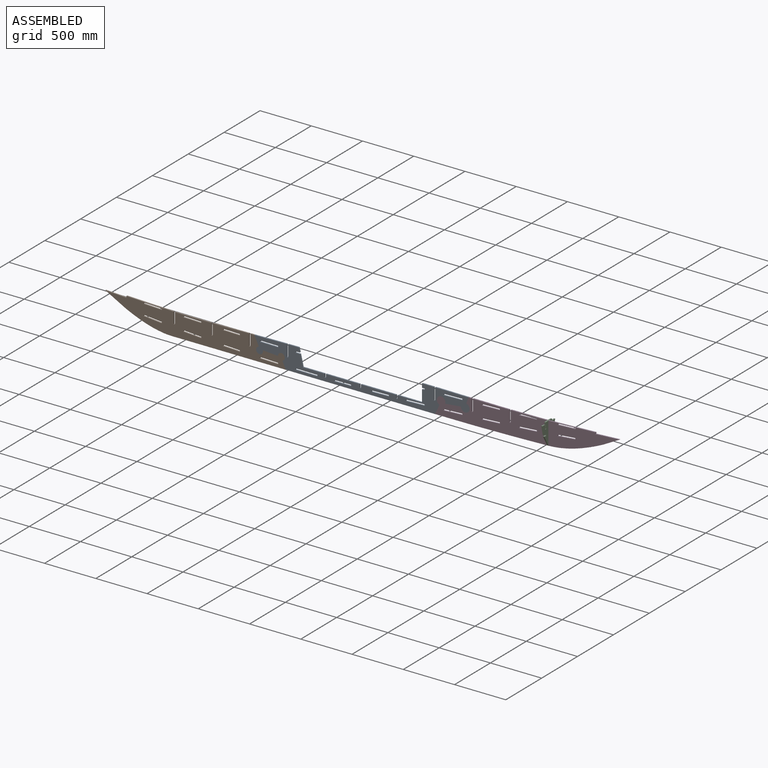
[diagram: assembled view]
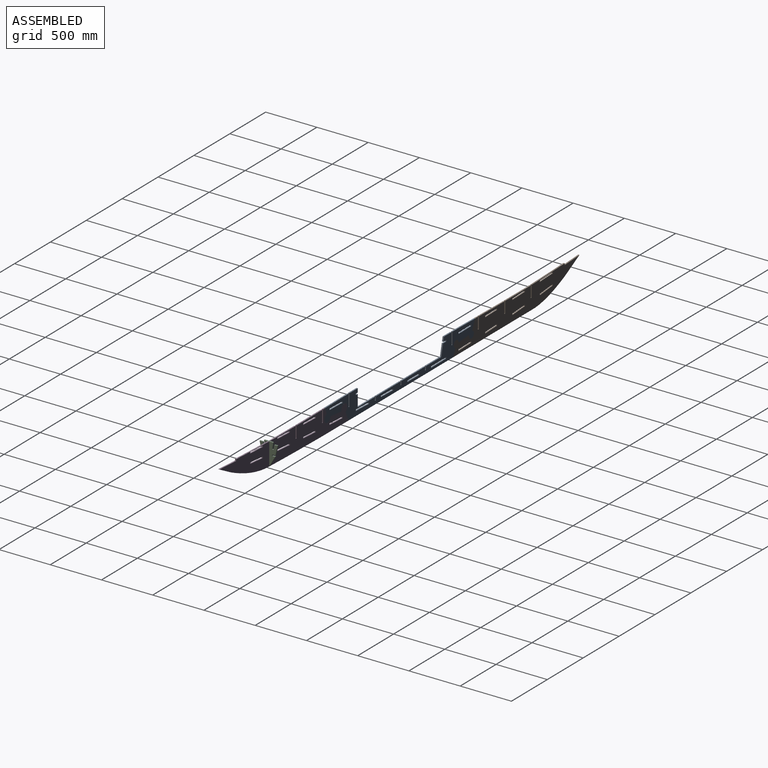
[diagram: assembled view, second angle]
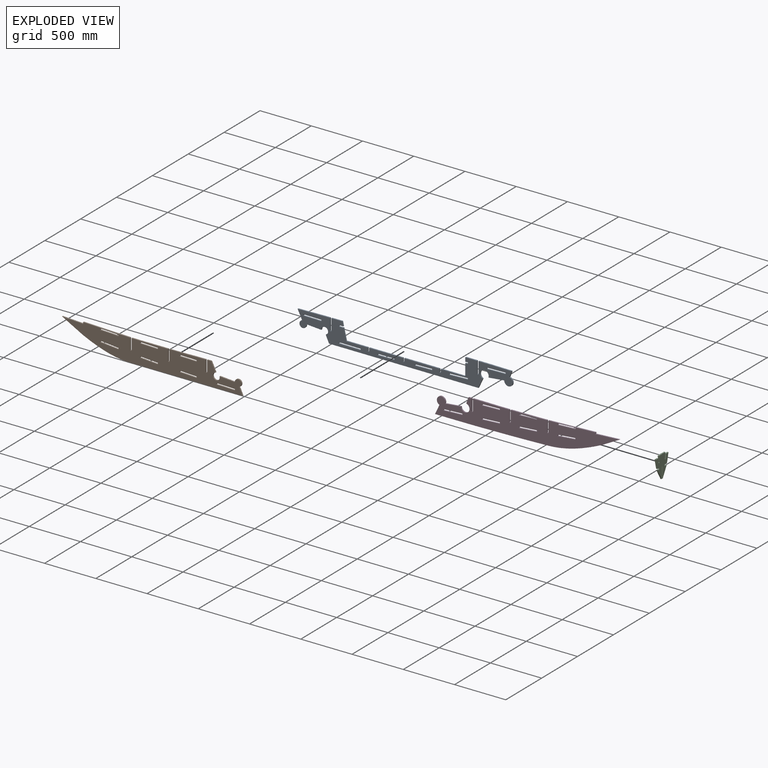
[diagram: exploded view]
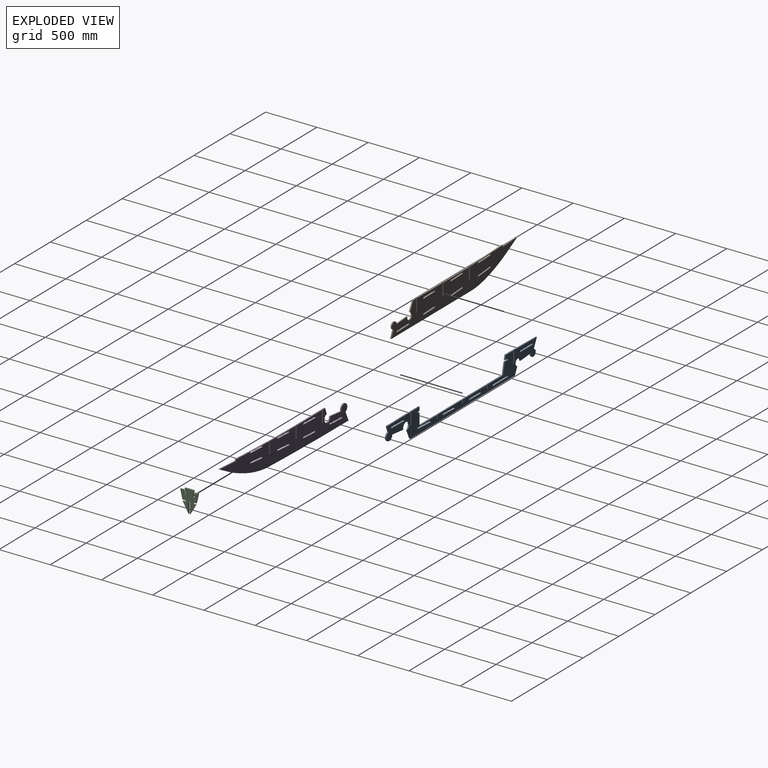
[diagram: exploded view, second angle]
ASSEMBLY  parts=4 mates=3
PART A: 74 faces, bbox 2099.5x236x12.7 mm
  f0: plane 12.7x12.7mm, normal (-1,0,0), area 161.3mm2, adj f1,f71,f72,f73
  f1: extruded ~213.18x12.7mm, area 2707.4mm2, adj f0,f2,f72,f73
  f2: plane 12.7x12.7mm, normal (1,0,0), area 161.3mm2, adj f1,f71,f72,f73
  f3: plane 12.7x12.7mm, normal (-1,0,0), area 161.3mm2, adj f4,f65,f72,f73
  f4: extruded ~164.73x12.7mm, area 2092.1mm2, adj f3,f5,f72,f73
  f5: plane 12.7x12.7mm, normal (1,0,0), area 161.3mm2, adj f4,f65,f72,f73
  f6: plane 12.7x12.7mm, normal (1,0,0), area 161.3mm2, adj f7,f66,f72,f73
  f7: extruded ~184.11x12.7mm, area 2338.8mm2, adj f6,f8,f72,f73
  f8: plane 12.7x12.7mm, normal (-1,0,0), area 161.3mm2, adj f7,f66,f72,f73
  f9: plane 12.7x12.7mm, normal (-1,0,0), area 161.3mm2, adj f10,f67,f72,f73
  f10: extruded ~169.57x12.7mm, area 2154.1mm2, adj f9,f11,f72,f73
  f11: plane 12.7x12.7mm, normal (1,0,0), area 161.3mm2, adj f10,f67,f72,f73
  f12: plane 12.71x12.7mm, normal (-1,0,0), area 161.4mm2, adj f13,f68,f72,f73
  f13: extruded ~184.11x12.7mm, area 2339.7mm2, adj f12,f14,f72,f73
  f14: plane 12.71x12.7mm, normal (1,0,0), area 161.4mm2, adj f13,f68,f72,f73
  f15: plane 12.7x12.7mm, normal (-1,0,0), area 161.3mm2, adj f16,f69,f72,f73
  f16: extruded ~179.26x12.7mm, area 2276.8mm2, adj f15,f17,f72,f73
  f17: plane 12.7x12.7mm, normal (1,0,0), area 161.3mm2, adj f16,f69,f72,f73
  f18: plane 33.22x12.7mm, normal (-1,0,0), area 421.8mm2, adj f19,f70,f72,f73
  f19: plane 12.7x12.7mm, normal (0,1,0), area 161.3mm2, adj f18,f20,f72,f73
  f20: plane 33.22x12.7mm, normal (1,0,0), area 421.8mm2, adj f19,f21,f72,f73
  f21: plane 330.2x12.7mm, normal (0,1,0), area 4193.5mm2, adj f20,f22,f72,f73
  f22: plane 33.34x12.7mm, normal (-1,0,0), area 423.4mm2, adj f21,f23,f72,f73
  f23: plane 12.7x12.7mm, normal (0,1,0), area 161.3mm2, adj f22,f24,f72,f73
  f24: plane 33.34x12.7mm, normal (1,0,0), area 423.4mm2, adj f23,f25,f72,f73
  f25: plane 212.64x12.7mm, normal (0,1,0), area 2700.5mm2, adj f24,f26,f72,f73
  f26: extruded ~108.99x25.16mm, area 1420.6mm2, adj f25,f27,f72,f73
  f27: extruded ~45.29x12.7mm, area 575.2mm2, adj f26,f28,f72,f73
  f28: plane 12.7x12.7mm, normal (1,0,0), area 161.3mm2, adj f27,f29,f72,f73
  f29: extruded ~42.33x12.7mm, area 537.6mm2, adj f28,f30,f72,f73
  f30: plane 42.42x12.7mm, normal (0.97,0.22,0), area 552.8mm2, adj f29,f31,f72,f73
  f31: extruded ~105.09x12.7mm, area 1334.7mm2, adj f30,f32,f72,f73
  f32: plane 115.04x12.7mm, normal (-1,0,0), area 1461.1mm2, adj f31,f33,f72,f73
  f33: plane 12.7x12.7mm, normal (0,1,0), area 161.3mm2, adj f32,f34,f72,f73
  f34: plane 114.93x12.7mm, normal (1,0,0), area 1459.6mm2, adj f33,f35,f72,f73
  f35: extruded ~138.04x12.7mm, area 1753.3mm2, adj f34,f36,f72,f73
  f36: extruded ~137.92x12.7mm, area 1751.9mm2, adj f35,f37,f72,f73
  f37: extruded ~40.52x12.7mm, area 514.7mm2, adj f36,f38,f72,f73
  f38: plane 89.73x43.87mm, normal (-0.9,-0.44,0), area 1268.4mm2, adj f37,f39,f72,f73
  f39: cylinder r=33.27mm len=66.53mm, axis (0,0,-1), area 2030.5mm2, adj f38,f40,f72,f73
  f40: plane 148.3x12.7mm, normal (-0.07,-1,0), area 1888.5mm2, adj f39,f41,f72,f73
  f41: cylinder r=33.27mm len=66.53mm, axis (0,0,-1), area 1880.3mm2, adj f40,f42,f72,f73
  f42: plane 70.6x32.65mm, normal (-0.91,-0.42,0), area 987.9mm2, adj f41,f43,f72,f73
  f43: plane 1456.71x12.7mm, normal (0,-1,0), area 18500.2mm2, adj f42,f44,f72,f73
  f44: plane 92.06x42.64mm, normal (0.91,-0.42,0), area 1288.5mm2, adj f43,f45,f72,f73
  f45: cylinder r=41.82mm len=83.63mm, axis (0,0,-1), area 2446.7mm2, adj f44,f46,f72,f73
  f46: plane 153.63x15.59mm, normal (0.1,-0.99,0), area 1961.1mm2, adj f45,f47,f72,f73
  f47: cylinder r=41.82mm len=83.63mm, axis (0,0,-1), area 2370.1mm2, adj f46,f48,f72,f73
  f48: plane 59.03x21.23mm, normal (0.94,-0.34,0), area 796.7mm2, adj f47,f49,f72,f73
  f49: extruded ~77.72x12.7mm, area 987mm2, adj f48,f50,f72,f73
  f50: extruded ~121.7x12.7mm, area 1545.8mm2, adj f49,f51,f72,f73
  f51: extruded ~125.13x12.7mm, area 1589.2mm2, adj f50,f52,f72,f73
  f52: plane 117.94x12.7mm, normal (-1,0,0), area 1497.9mm2, adj f51,f53,f72,f73
  f53: plane 12.7x12.7mm, normal (0,1,0), area 161.3mm2, adj f52,f54,f72,f73
  f54: plane 117.94x12.7mm, normal (1,0,0), area 1497.9mm2, adj f53,f55,f72,f73
  f55: extruded ~115.63x12.7mm, area 1468.6mm2, adj f54,f56,f72,f73
  f56: plane 38.83x12.7mm, normal (-1,0,0), area 493.1mm2, adj f55,f57,f72,f73
  f57: extruded ~25.42x12.7mm, area 322.9mm2, adj f56,f58,f72,f73
  f58: plane 12.7x12.7mm, normal (-1,0,0), area 161.3mm2, adj f57,f59,f72,f73
  f59: extruded ~25.42x12.7mm, area 322.9mm2, adj f58,f60,f72,f73
  f60: plane 116.78x12.7mm, normal (-1,0,0), area 1483.1mm2, adj f59,f61,f72,f73
  f61: plane 239.97x12.7mm, normal (0,1,0), area 3047.6mm2, adj f60,f62,f72,f73
  f62: plane 33.33x12.7mm, normal (-1,0,0), area 423.2mm2, adj f61,f63,f72,f73
  f63: plane 12.7x12.7mm, normal (0,1,0), area 161.3mm2, adj f62,f64,f72,f73
  f64: plane 33.33x12.7mm, normal (1,0,0), area 423.2mm2, adj f63,f70,f72,f73
  f65: extruded ~164.73x12.7mm, area 2092.1mm2, adj f3,f5,f72,f73
  f66: extruded ~184.11x12.7mm, area 2338.8mm2, adj f6,f8,f72,f73
  f67: extruded ~169.57x12.7mm, area 2154.1mm2, adj f9,f11,f72,f73
  f68: extruded ~184.11x12.7mm, area 2339.7mm2, adj f12,f14,f72,f73
  f69: extruded ~179.26x12.7mm, area 2276.8mm2, adj f15,f17,f72,f73
  f70: plane 342.9x12.7mm, normal (0,1,0), area 4354.8mm2, adj f18,f64,f72,f73
  f71: extruded ~213.18x12.7mm, area 2707.4mm2, adj f0,f2,f72,f73
  f72: plane 2099.53x236mm, normal (0,0,1), area 197660.3mm2, adj f0,f1,f2,f3,f4,f5,f6,f7
  f73: plane 2099.53x236mm, normal (0,0,-1), area 197660.3mm2, adj f0,f1,f2,f3,f4,f5,f6,f7
PART B: 63 faces, bbox 1760.3x235x12.7 mm
  f0: plane 12.7x3.14mm, normal (-1,0.04,0), area 39.9mm2, adj f1,f60,f61,f62
  f1: plane 12.72x12.7mm, normal (-1,0,0), area 161.5mm2, adj f0,f2,f61,f62
  f2: extruded ~115.12x12.7mm, area 1464.1mm2, adj f1,f3,f61,f62
  f3: extruded ~58.71x12.7mm, area 746.9mm2, adj f2,f4,f61,f62
  f4: extruded ~29.35x12.7mm, area 373.4mm2, adj f3,f5,f61,f62
  f5: extruded ~12.7x1.99mm, area 25.3mm2, adj f4,f6,f61,f62
  f6: extruded ~204.03x109.59mm, area 2941.4mm2, adj f5,f7,f61,f62
  f7: extruded ~455.16x120.67mm, area 6029.7mm2, adj f6,f8,f61,f62
  f8: extruded ~696.52x12.7mm, area 8845.8mm2, adj f7,f9,f61,f62
  f9: extruded ~40.08x12.7mm, area 509mm2, adj f8,f10,f61,f62
  f10: extruded ~364.52x12.7mm, area 4629.4mm2, adj f9,f11,f61,f62
  f11: plane 70.6x32.65mm, normal (0.91,0.42,0), area 987.9mm2, adj f10,f12,f61,f62
  f12: cylinder r=33.27mm len=66.53mm, axis (0,0,-1), area 1880.3mm2, adj f11,f13,f61,f62
  f13: plane 148.3x12.7mm, normal (0.07,1,0), area 1888.5mm2, adj f12,f14,f61,f62
  f14: cylinder r=33.27mm len=66.53mm, axis (0,0,-1), area 2030.5mm2, adj f13,f15,f61,f62
  f15: plane 89.73x43.87mm, normal (0.9,0.44,0), area 1268.4mm2, adj f14,f16,f61,f62
  f16: extruded ~39.1x12.7mm, area 496.6mm2, adj f15,f17,f61,f62
  f17: plane 112.24x12.7mm, normal (-1,0,0), area 1425.4mm2, adj f16,f18,f61,f62
  f18: plane 12.7x12.7mm, normal (0,1,0), area 161.3mm2, adj f17,f19,f61,f62
  f19: plane 112.16x12.7mm, normal (1,0,0), area 1424.4mm2, adj f18,f20,f61,f62
  f20: extruded ~92.21x12.7mm, area 1171.1mm2, adj f19,f21,f61,f62
  f21: extruded ~92.16x12.7mm, area 1170.7mm2, adj f20,f22,f61,f62
  f22: extruded ~170.99x12.7mm, area 2171.7mm2, adj f21,f23,f61,f62
  f23: plane 109.87x12.7mm, normal (-1,0,0), area 1395.3mm2, adj f22,f24,f61,f62
  f24: plane 12.7x12.7mm, normal (0,1,0), area 161.3mm2, adj f23,f25,f61,f62
  f25: plane 109.82x12.7mm, normal (1,0,0), area 1394.7mm2, adj f24,f26,f61,f62
  f26: extruded ~183.81x12.7mm, area 2334.4mm2, adj f25,f27,f61,f62
  f27: extruded ~172.04x12.7mm, area 2185mm2, adj f26,f28,f61,f62
  f28: plane 109.78x12.7mm, normal (-1,0,0), area 1394.2mm2, adj f27,f29,f61,f62
  f29: plane 12.7x12.7mm, normal (0,1,0), area 161.3mm2, adj f28,f30,f61,f62
  f30: plane 110.09x12.7mm, normal (1,0,0), area 1398.1mm2, adj f29,f31,f61,f62
  f31: plane 12.7x0.01mm, normal (0.03,1,0), area 0.2mm2, adj f30,f60,f61,f62
  f32: plane 12.77x12.7mm, normal (1,0,0), area 162.1mm2, adj f33,f53,f61,f62
  f33: extruded ~178.25x16.94mm, area 2273.9mm2, adj f32,f34,f61,f62
  f34: plane 12.75x12.7mm, normal (-1,0,0), area 161.9mm2, adj f33,f53,f61,f62
  f35: plane 12.71x12.7mm, normal (-1,0,0), area 161.4mm2, adj f36,f54,f61,f62
  f36: extruded ~178.25x12.7mm, area 2265.8mm2, adj f35,f37,f61,f62
  f37: plane 12.71x12.7mm, normal (1,0,0), area 161.5mm2, adj f36,f54,f61,f62
  f38: plane 12.7x12.7mm, normal (-1,0,0), area 161.3mm2, adj f39,f55,f61,f62
  f39: extruded ~174.42x12.7mm, area 2216.1mm2, adj f38,f40,f61,f62
  f40: plane 12.71x12.7mm, normal (1,0,0), area 161.4mm2, adj f39,f55,f61,f62
  f41: plane 12.72x12.7mm, normal (-1,0,0), area 161.6mm2, adj f42,f56,f61,f62
  f42: extruded ~174.42x12.7mm, area 2220mm2, adj f41,f43,f61,f62
  f43: plane 12.73x12.7mm, normal (1,0,0), area 161.7mm2, adj f42,f56,f61,f62
  f44: extruded ~164.73x12.7mm, area 2092.4mm2, adj f45,f57,f61,f62
  f45: plane 12.7x12.7mm, normal (1,0,0), area 161.3mm2, adj f44,f46,f61,f62
  f46: extruded ~164.73x12.7mm, area 2092.4mm2, adj f45,f57,f61,f62
  f47: plane 12.71x12.7mm, normal (-1,0,0), area 161.4mm2, adj f48,f58,f61,f62
  f48: extruded ~164.73x12.7mm, area 2093.9mm2, adj f47,f49,f61,f62
  f49: plane 12.71x12.7mm, normal (1,0,0), area 161.5mm2, adj f48,f58,f61,f62
  f50: plane 12.7x12.7mm, normal (-1,0,0), area 161.3mm2, adj f51,f59,f61,f62
  f51: extruded ~179.26x12.7mm, area 2277.3mm2, adj f50,f52,f61,f62
  f52: plane 12.71x12.7mm, normal (1,0,0), area 161.4mm2, adj f51,f59,f61,f62
  f53: extruded ~178.25x16.92mm, area 2273.9mm2, adj f32,f34,f61,f62
  f54: extruded ~178.25x12.7mm, area 2265.8mm2, adj f35,f37,f61,f62
  f55: extruded ~174.42x12.7mm, area 2216.1mm2, adj f38,f40,f61,f62
  f56: extruded ~174.42x12.7mm, area 2220mm2, adj f41,f43,f61,f62
  f57: plane 12.7x12.7mm, normal (-1,0,0), area 161.3mm2, adj f44,f46,f61,f62
  f58: extruded ~164.73x12.7mm, area 2093.9mm2, adj f47,f49,f61,f62
  f59: extruded ~179.26x12.7mm, area 2277.3mm2, adj f50,f52,f61,f62
  f60: extruded ~460.22x14.54mm, area 5847.7mm2, adj f0,f31,f61,f62
  f61: plane 1760.31x234.97mm, normal (0,0,1), area 282842.2mm2, adj f0,f1,f2,f3,f4,f5,f6,f7
  f62: plane 1760.31x234.97mm, normal (0,0,-1), area 282842.2mm2, adj f0,f1,f2,f3,f4,f5,f6,f7
PART C: 24 faces, bbox 175.8x221.4x12.7 mm
  f0: plane 32.69x12.7mm, normal (0,1,0), area 415.1mm2, adj f1,f21,f22,f23
  f1: extruded ~44.89x12.7mm, area 575.2mm2, adj f0,f2,f22,f23
  f2: plane 12.7x12.67mm, normal (0.13,0.99,0), area 162.3mm2, adj f1,f3,f22,f23
  f3: extruded ~60.46x12.7mm, area 774.8mm2, adj f2,f4,f22,f23
  f4: cylinder r=780.53mm len=89.28mm, axis (0,0,-1), area 1134.5mm2, adj f3,f5,f22,f23
  f5: extruded ~60.46x12.7mm, area 774.8mm2, adj f4,f6,f22,f23
  f6: plane 12.7x12.67mm, normal (-0.13,0.99,0), area 162.3mm2, adj f5,f7,f22,f23
  f7: extruded ~44.89x12.7mm, area 575.2mm2, adj f6,f8,f22,f23
  f8: plane 32.69x12.7mm, normal (0,1,0), area 415.1mm2, adj f7,f9,f22,f23
  f9: plane 89.78x21.06mm, normal (-0.97,-0.23,0), area 1171.1mm2, adj f8,f10,f22,f23
  f10: plane 30.78x12.7mm, normal (0,-1,0), area 390.9mm2, adj f9,f11,f22,f23
  f11: plane 12.7x12.7mm, normal (-1,0,0), area 161.3mm2, adj f10,f12,f22,f23
  f12: plane 27.47x12.7mm, normal (0,1,0), area 348.8mm2, adj f11,f13,f22,f23
  f13: plane 100.33x57.18mm, normal (-0.87,-0.5,0), area 1466.6mm2, adj f12,f14,f22,f23
  f14: plane 110.47x12.7mm, normal (1,0,0), area 1402.9mm2, adj f13,f15,f22,f23
  f15: plane 12.7x12.7mm, normal (0,-1,0), area 161.3mm2, adj f14,f16,f22,f23
  f16: plane 110.47x12.7mm, normal (-1,0,0), area 1402.9mm2, adj f15,f17,f22,f23
  f17: plane 100.33x57.18mm, normal (0.87,-0.5,0), area 1466.6mm2, adj f16,f18,f22,f23
  f18: plane 27.47x12.7mm, normal (0,1,0), area 348.8mm2, adj f17,f19,f22,f23
  f19: plane 12.7x12.7mm, normal (1,0,0), area 161.3mm2, adj f18,f20,f22,f23
  f20: plane 30.78x12.7mm, normal (0,-1,0), area 390.9mm2, adj f19,f21,f22,f23
  f21: plane 89.78x21.06mm, normal (0.97,-0.23,0), area 1171.1mm2, adj f0,f20,f22,f23
  f22: plane 221.36x175.81mm, normal (0,0,1), area 20860.6mm2, adj f0,f1,f2,f3,f4,f5,f6,f7
  f23: plane 221.36x175.81mm, normal (0,0,-1), area 20860.6mm2, adj f0,f1,f2,f3,f4,f5,f6,f7
PART D: 60 faces, bbox 1800.3x256.6x12.7 mm
  f0: plane 12.7x1.81mm, normal (1,0.05,0), area 23mm2, adj f1,f57,f58,f59
  f1: extruded ~458.67x18.34mm, area 5829.8mm2, adj f0,f2,f58,f59
  f2: plane 110.9x12.7mm, normal (-1,0,0), area 1408.4mm2, adj f1,f3,f58,f59
  f3: plane 12.7x12.7mm, normal (0,1,0), area 161.3mm2, adj f2,f4,f58,f59
  f4: plane 110.47x12.7mm, normal (1,0,0), area 1402.9mm2, adj f3,f5,f58,f59
  f5: extruded ~232.27x12.7mm, area 2950.2mm2, adj f4,f6,f58,f59
  f6: extruded ~123.33x12.7mm, area 1566.4mm2, adj f5,f7,f58,f59
  f7: plane 113.15x12.7mm, normal (-1,0,0), area 1437mm2, adj f6,f8,f58,f59
  f8: plane 12.7x12.7mm, normal (0,1,0), area 161.3mm2, adj f7,f9,f58,f59
  f9: plane 113.02x12.7mm, normal (1,0,0), area 1435.3mm2, adj f8,f10,f58,f59
  f10: extruded ~234.36x12.7mm, area 2976.6mm2, adj f9,f11,f58,f59
  f11: extruded ~121.24x12.7mm, area 1539.7mm2, adj f10,f12,f58,f59
  f12: plane 116.34x12.7mm, normal (-1,0,0), area 1477.5mm2, adj f11,f13,f58,f59
  f13: plane 12.7x12.7mm, normal (0,1,0), area 161.3mm2, adj f12,f14,f58,f59
  f14: plane 116.32x12.7mm, normal (1,0,0), area 1477.3mm2, adj f13,f15,f58,f59
  f15: extruded ~31.05x12.7mm, area 394.4mm2, adj f14,f16,f58,f59
  f16: plane 59.03x21.23mm, normal (-0.94,0.34,0), area 796.7mm2, adj f15,f17,f58,f59
  f17: cylinder r=41.82mm len=83.63mm, axis (0,0,-1), area 2370.1mm2, adj f16,f18,f58,f59
  f18: plane 153.63x15.59mm, normal (-0.1,0.99,0), area 1961.1mm2, adj f17,f19,f58,f59
  f19: cylinder r=41.82mm len=83.63mm, axis (0,0,-1), area 2446.7mm2, adj f18,f20,f58,f59
  f20: plane 92.06x42.64mm, normal (-0.91,0.42,0), area 1288.5mm2, adj f19,f21,f58,f59
  f21: extruded ~375.87x12.7mm, area 4773.6mm2, adj f20,f22,f58,f59
  f22: extruded ~24.34x12.7mm, area 309.2mm2, adj f21,f23,f58,f59
  f23: extruded ~712.26x15.65mm, area 9048mm2, adj f22,f24,f58,f59
  f24: extruded ~525.11x150.72mm, area 6987.3mm2, adj f23,f25,f58,f59
  f25: extruded ~162.67x87.4mm, area 2345.2mm2, adj f24,f26,f58,f59
  f26: extruded ~38.99x12.7mm, area 495.9mm2, adj f25,f27,f58,f59
  f27: extruded ~66.34x12.7mm, area 843.8mm2, adj f26,f28,f58,f59
  f28: extruded ~130.06x12.7mm, area 1654.2mm2, adj f27,f57,f58,f59
  f29: extruded ~174.7x12.7mm, area 2222.8mm2, adj f30,f50,f58,f59
  f30: plane 12.72x12.7mm, normal (1,0,0), area 161.6mm2, adj f29,f31,f58,f59
  f31: extruded ~174.7x12.7mm, area 2222.8mm2, adj f30,f50,f58,f59
  f32: extruded ~184.11x12.7mm, area 2340.9mm2, adj f33,f51,f58,f59
  f33: plane 12.71x12.7mm, normal (1,0,0), area 161.5mm2, adj f32,f34,f58,f59
  f34: extruded ~184.11x12.7mm, area 2340.9mm2, adj f33,f51,f58,f59
  f35: extruded ~174.42x12.7mm, area 2216.6mm2, adj f36,f52,f58,f59
  f36: plane 12.71x12.7mm, normal (-1,0,0), area 161.4mm2, adj f35,f37,f58,f59
  f37: extruded ~174.42x12.7mm, area 2216.6mm2, adj f36,f52,f58,f59
  f38: plane 12.74x12.7mm, normal (-1,0,0), area 161.8mm2, adj f39,f53,f58,f59
  f39: extruded ~174.42x13mm, area 2221.2mm2, adj f38,f40,f58,f59
  f40: plane 12.73x12.7mm, normal (1,0,0), area 161.7mm2, adj f39,f53,f58,f59
  f41: extruded ~172.9x15.53mm, area 2204.7mm2, adj f42,f54,f58,f59
  f42: plane 12.75x12.7mm, normal (1,0,0), area 161.9mm2, adj f41,f43,f58,f59
  f43: extruded ~172.9x15.54mm, area 2204.7mm2, adj f42,f54,f58,f59
  f44: extruded ~172.9x12.7mm, area 2198.2mm2, adj f45,f55,f58,f59
  f45: plane 12.71x12.7mm, normal (1,0,0), area 161.4mm2, adj f44,f46,f58,f59
  f46: extruded ~172.9x12.7mm, area 2198.2mm2, adj f45,f55,f58,f59
  f47: extruded ~174.7x12.7mm, area 2219.6mm2, adj f48,f56,f58,f59
  f48: plane 12.71x12.7mm, normal (-1,0,0), area 161.4mm2, adj f47,f49,f58,f59
  f49: extruded ~174.7x12.7mm, area 2219.6mm2, adj f48,f56,f58,f59
  f50: plane 12.73x12.7mm, normal (-1,0,0), area 161.6mm2, adj f29,f31,f58,f59
  f51: plane 12.72x12.7mm, normal (-1,0,0), area 161.5mm2, adj f32,f34,f58,f59
  f52: plane 12.71x12.7mm, normal (1,0,0), area 161.4mm2, adj f35,f37,f58,f59
  f53: extruded ~174.42x13mm, area 2221.2mm2, adj f38,f40,f58,f59
  f54: plane 12.76x12.7mm, normal (-1,0,0), area 162mm2, adj f41,f43,f58,f59
  f55: plane 12.72x12.7mm, normal (-1,0,0), area 161.5mm2, adj f44,f46,f58,f59
  f56: plane 12.71x12.7mm, normal (1,0,0), area 161.4mm2, adj f47,f49,f58,f59
  f57: plane 12.72x12.7mm, normal (1,0,0), area 161.5mm2, adj f0,f28,f58,f59
  f58: plane 1800.25x256.55mm, normal (0,0,1), area 295561.6mm2, adj f0,f1,f2,f3,f4,f5,f6,f7
  f59: plane 1800.25x256.55mm, normal (0,0,-1), area 295561.6mm2, adj f0,f1,f2,f3,f4,f5,f6,f7
PLACE A rot(axis=(1,0,0),90deg) t=(-181.91,482.14,-299.45)mm fixed
PLACE B rot(axis=(1,0,0),90deg) t=(-806.31,482.14,-284.47)mm
PLACE C rot(axis=(0.58,0.58,0.58),120deg) t=(2623.97,475.79,-275.43)mm
PLACE D rot(axis=(1,0,0),90deg) t=(1530.55,482.14,-402.78)mm
MATE fastened B.f12 <-> A.f41  axis (0,-1,0) through (31.44,469.44,-299.45)mm
MATE fastened C.f22 <-> D.f2  axis (1,0,0) through (2636.67,475.79,-275.65)mm
MATE fastened D.f19 <-> A.f45  axis (0,-1,0) through (1589.86,469.44,-272.37)mm
